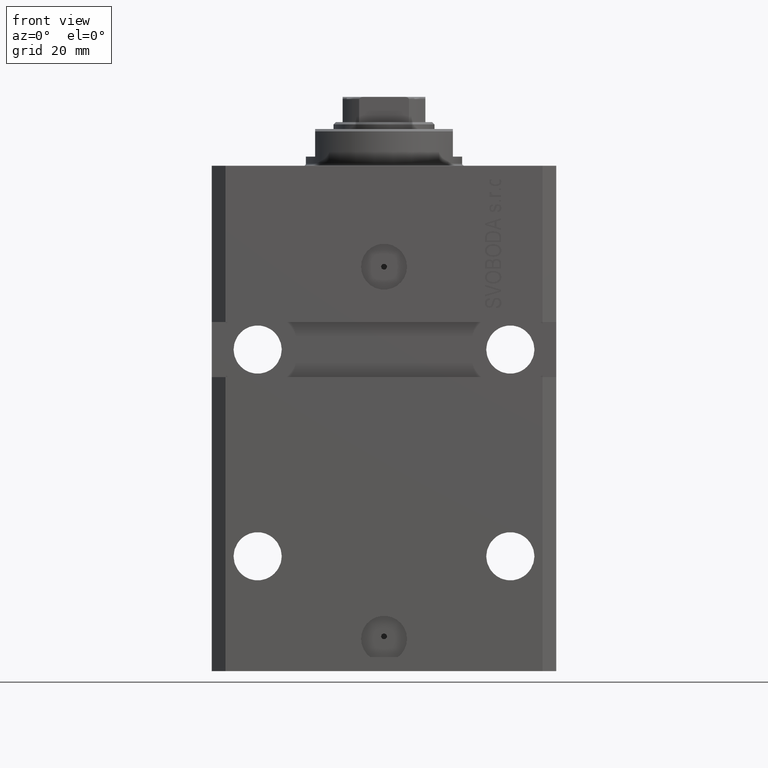
[diagram: clean part render]
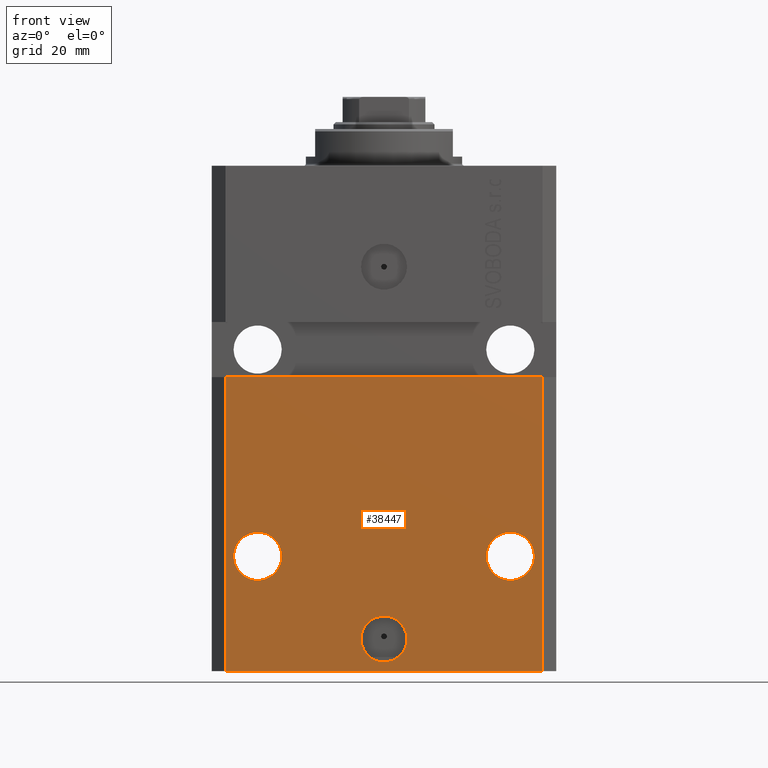
[diagram: same view with one face highlighted and labeled with its STEP entity id]
A machine part, front view. The second image highlights one B-rep face of the part: STEP entity #38447.
In plain terms, the highlighted planar face has unit normal (0, -1, 0).
Its self-contained STEP definition (entity closure, byte-faithful):
#1604 = VERTEX_POINT ( 'NONE', #18138 ) ;
#1825 = CARTESIAN_POINT ( 'NONE',  ( 0.000000000000000000, -27.49999999999999645, -103.0000000000000000 ) ) ;
#1943 = DIRECTION ( 'NONE',  ( -1.000000000000000000, 0.000000000000000000, 0.000000000000000000 ) ) ;
#2271 = FACE_BOUND ( 'NONE', #19862, .T. ) ;
#2406 = DIRECTION ( 'NONE',  ( 1.176083712526788232E-16, -1.000000000000000000, 0.000000000000000000 ) ) ;
#2878 = ORIENTED_EDGE ( 'NONE', *, *, #12361, .F. ) ;
#5120 = EDGE_CURVE ( 'NONE', #6367, #33388, #16746, .T. ) ;
#5205 = CARTESIAN_POINT ( 'NONE',  ( -32.75000000000000711, -27.50000000000000000, -84.99999999999998579 ) ) ;
#5891 = CARTESIAN_POINT ( 'NONE',  ( -34.49999999999998579, -27.49999999999999645, -110.0000000000000000 ) ) ;
#6222 = DIRECTION ( 'NONE',  ( 1.000000000000000000, 0.000000000000000000, 0.000000000000000000 ) ) ;
#6367 = VERTEX_POINT ( 'NONE', #43952 ) ;
#6875 = CARTESIAN_POINT ( 'NONE',  ( -34.49999999999998579, -27.49999999999999645, -110.0000000000000000 ) ) ;
#7352 = VERTEX_POINT ( 'NONE', #46851 ) ;
#7407 = VERTEX_POINT ( 'NONE', #6875 ) ;
#7607 = ORIENTED_EDGE ( 'NONE', *, *, #14433, .F. ) ;
#7742 = CARTESIAN_POINT ( 'NONE',  ( 34.49999999999999289, -27.49999999999999645, -110.0000000000000000 ) ) ;
#8231 = EDGE_CURVE ( 'NONE', #31052, #7352, #40444, .T. ) ;
#8476 = LINE ( 'NONE', #23271, #44677 ) ;
#9383 = EDGE_LOOP ( 'NONE', ( #12486, #32090, #14925, #34128 ) ) ;
#10140 = CARTESIAN_POINT ( 'NONE',  ( -37.50000000000000000, -27.50000000000000000, -46.00000000000000000 ) ) ;
#11883 = VECTOR ( 'NONE', #28803, 1000.000000000000000 ) ;
#12051 = VECTOR ( 'NONE', #15242, 1000.000000000000000 ) ;
#12361 = EDGE_CURVE ( 'NONE', #21790, #14011, #24002, .T. ) ;
#12486 = ORIENTED_EDGE ( 'NONE', *, *, #8231, .F. ) ;
#12904 = EDGE_CURVE ( 'NONE', #7407, #46803, #34956, .T. ) ;
#13090 = AXIS2_PLACEMENT_3D ( 'NONE', #1825, #24831, #27753 ) ;
#13215 = VERTEX_POINT ( 'NONE', #19640 ) ;
#13374 = CARTESIAN_POINT ( 'NONE',  ( -34.49999999999998579, -27.49999999999999645, -110.0000000000000000 ) ) ;
#13879 = FACE_OUTER_BOUND ( 'NONE', #9383, .T. ) ;
#14011 = VERTEX_POINT ( 'NONE', #28407 ) ;
#14433 = EDGE_CURVE ( 'NONE', #1604, #13215, #34033, .T. ) ;
#14925 = ORIENTED_EDGE ( 'NONE', *, *, #12904, .T. ) ;
#15139 = AXIS2_PLACEMENT_3D ( 'NONE', #17886, #2406, #32664 ) ;
#15242 = DIRECTION ( 'NONE',  ( 0.000000000000000000, 0.000000000000000000, 1.000000000000000000 ) ) ;
#15472 = ORIENTED_EDGE ( 'NONE', *, *, #34029, .F. ) ;
#16412 = EDGE_LOOP ( 'NONE', ( #15472, #7607 ) ) ;
#16746 = CIRCLE ( 'NONE', #22938, 5.249999999999994671 ) ;
#17750 = FACE_BOUND ( 'NONE', #16412, .T. ) ;
#17886 = CARTESIAN_POINT ( 'NONE',  ( 27.50000000000001421, -27.49999999999999289, -84.99999999999998579 ) ) ;
#18138 = CARTESIAN_POINT ( 'NONE',  ( -5.000000000000006217, -27.49999999999999645, -103.0000000000000000 ) ) ;
#18325 = DIRECTION ( 'NONE',  ( -1.000000000000000000, 0.000000000000000000, 0.000000000000000000 ) ) ;
#18390 = CARTESIAN_POINT ( 'NONE',  ( 0.000000000000000000, -27.49999999999999645, -103.0000000000000000 ) ) ;
#18574 = CARTESIAN_POINT ( 'NONE',  ( -27.50000000000001421, -27.50000000000000000, -84.99999999999998579 ) ) ;
#19153 = DIRECTION ( 'NONE',  ( 0.000000000000000000, 0.000000000000000000, 1.000000000000000000 ) ) ;
#19640 = CARTESIAN_POINT ( 'NONE',  ( 5.000000000000006217, -27.49999999999999645, -103.0000000000000000 ) ) ;
#19862 = EDGE_LOOP ( 'NONE', ( #44768, #2878 ) ) ;
#20336 = CARTESIAN_POINT ( 'NONE',  ( -34.49999999999998579, -27.50000000000000000, -46.00000000000000000 ) ) ;
#21154 = DIRECTION ( 'NONE',  ( 0.000000000000000000, -1.000000000000000000, 0.000000000000000000 ) ) ;
#21238 = CARTESIAN_POINT ( 'NONE',  ( 22.25000000000002132, -27.49999999999999289, -84.99999999999998579 ) ) ;
#21553 = DIRECTION ( 'NONE',  ( 1.000000000000000000, 0.000000000000000000, 0.000000000000000000 ) ) ;
#21790 = VERTEX_POINT ( 'NONE', #21238 ) ;
#21954 = DIRECTION ( 'NONE',  ( 1.176083712526788232E-16, -1.000000000000000000, 0.000000000000000000 ) ) ;
#22938 = AXIS2_PLACEMENT_3D ( 'NONE', #35138, #39011, #1943 ) ;
#23271 = CARTESIAN_POINT ( 'NONE',  ( -34.49999999999998579, -27.49999999999999645, -110.0000000000000000 ) ) ;
#24002 = CIRCLE ( 'NONE', #38596, 5.249999999999994671 ) ;
#24304 = PLANE ( 'NONE',  #45648 ) ;
#24422 = ORIENTED_EDGE ( 'NONE', *, *, #36867, .F. ) ;
#24831 = DIRECTION ( 'NONE',  ( 1.176083712526788232E-16, -1.000000000000000000, 0.000000000000000000 ) ) ;
#25749 = CARTESIAN_POINT ( 'NONE',  ( 34.49999999999999289, -27.49999999999999645, -110.0000000000000000 ) ) ;
#27753 = DIRECTION ( 'NONE',  ( 1.000000000000000000, 0.000000000000000000, 0.000000000000000000 ) ) ;
#28407 = CARTESIAN_POINT ( 'NONE',  ( 32.75000000000000711, -27.49999999999999289, -84.99999999999998579 ) ) ;
#28803 = DIRECTION ( 'NONE',  ( 1.000000000000000000, 9.251858538542972814E-17, -9.251858538542972814E-17 ) ) ;
#30015 = EDGE_LOOP ( 'NONE', ( #31382, #24422 ) ) ;
#30032 = LINE ( 'NONE', #7742, #12051 ) ;
#31052 = VERTEX_POINT ( 'NONE', #20336 ) ;
#31216 = EDGE_CURVE ( 'NONE', #14011, #21790, #41445, .T. ) ;
#31382 = ORIENTED_EDGE ( 'NONE', *, *, #5120, .F. ) ;
#31558 = DIRECTION ( 'NONE',  ( 1.000000000000000000, 0.000000000000000000, 0.000000000000000000 ) ) ;
#31588 = DIRECTION ( 'NONE',  ( 0.000000000000000000, -0.000000000000000000, -1.000000000000000000 ) ) ;
#32090 = ORIENTED_EDGE ( 'NONE', *, *, #44194, .F. ) ;
#32381 = CARTESIAN_POINT ( 'NONE',  ( 27.50000000000001421, -27.49999999999999289, -84.99999999999998579 ) ) ;
#32664 = DIRECTION ( 'NONE',  ( 1.000000000000000000, 0.000000000000000000, 0.000000000000000000 ) ) ;
#32690 = DIRECTION ( 'NONE',  ( 1.176083712526788232E-16, -1.000000000000000000, 0.000000000000000000 ) ) ;
#33218 = AXIS2_PLACEMENT_3D ( 'NONE', #18574, #21954, #18325 ) ;
#33388 = VERTEX_POINT ( 'NONE', #5205 ) ;
#34029 = EDGE_CURVE ( 'NONE', #13215, #1604, #41745, .T. ) ;
#34033 = CIRCLE ( 'NONE', #43304, 5.000000000000006217 ) ;
#34128 = ORIENTED_EDGE ( 'NONE', *, *, #46317, .T. ) ;
#34646 = DIRECTION ( 'NONE',  ( 1.176083712526788232E-16, -1.000000000000000000, 0.000000000000000000 ) ) ;
#34956 = LINE ( 'NONE', #13374, #36281 ) ;
#35138 = CARTESIAN_POINT ( 'NONE',  ( -27.50000000000001421, -27.50000000000000000, -84.99999999999998579 ) ) ;
#36281 = VECTOR ( 'NONE', #31558, 1000.000000000000000 ) ;
#36867 = EDGE_CURVE ( 'NONE', #33388, #6367, #39418, .T. ) ;
#38447 = ADVANCED_FACE ( 'NONE', ( #17750, #2271, #46824, #13879 ), #24304, .T. ) ;
#38596 = AXIS2_PLACEMENT_3D ( 'NONE', #32381, #34646, #6222 ) ;
#39011 = DIRECTION ( 'NONE',  ( 1.176083712526788232E-16, -1.000000000000000000, 0.000000000000000000 ) ) ;
#39418 = CIRCLE ( 'NONE', #33218, 5.249999999999994671 ) ;
#40444 = LINE ( 'NONE', #10140, #11883 ) ;
#41445 = CIRCLE ( 'NONE', #15139, 5.249999999999994671 ) ;
#41745 = CIRCLE ( 'NONE', #13090, 5.000000000000006217 ) ;
#43304 = AXIS2_PLACEMENT_3D ( 'NONE', #18390, #32690, #21553 ) ;
#43952 = CARTESIAN_POINT ( 'NONE',  ( -22.25000000000002132, -27.50000000000000000, -84.99999999999998579 ) ) ;
#44194 = EDGE_CURVE ( 'NONE', #7407, #31052, #8476, .T. ) ;
#44677 = VECTOR ( 'NONE', #19153, 1000.000000000000000 ) ;
#44768 = ORIENTED_EDGE ( 'NONE', *, *, #31216, .F. ) ;
#45648 = AXIS2_PLACEMENT_3D ( 'NONE', #5891, #21154, #31588 ) ;
#46317 = EDGE_CURVE ( 'NONE', #46803, #7352, #30032, .T. ) ;
#46803 = VERTEX_POINT ( 'NONE', #25749 ) ;
#46824 = FACE_BOUND ( 'NONE', #30015, .T. ) ;
#46851 = CARTESIAN_POINT ( 'NONE',  ( 34.49999999999999289, -27.49999999999999289, -46.00000000000000711 ) ) ;